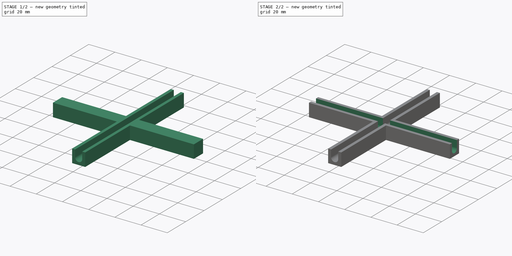
[diagram: build sequence overview — one tinted view per stage of 2, left to right]
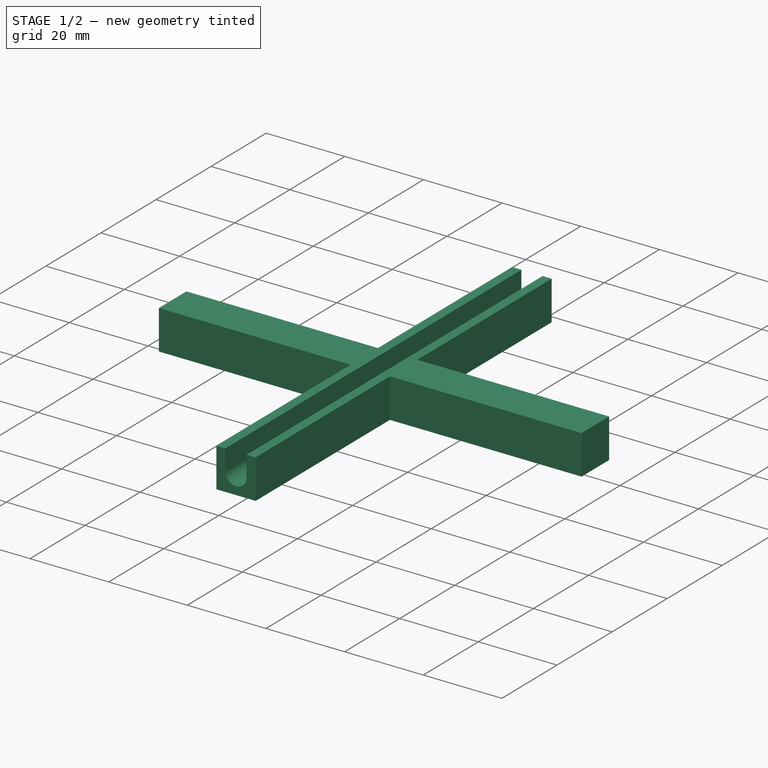
[diagram: stage 1 of 2 — iso view after this stage's code; geometry added in this stage tinted green]
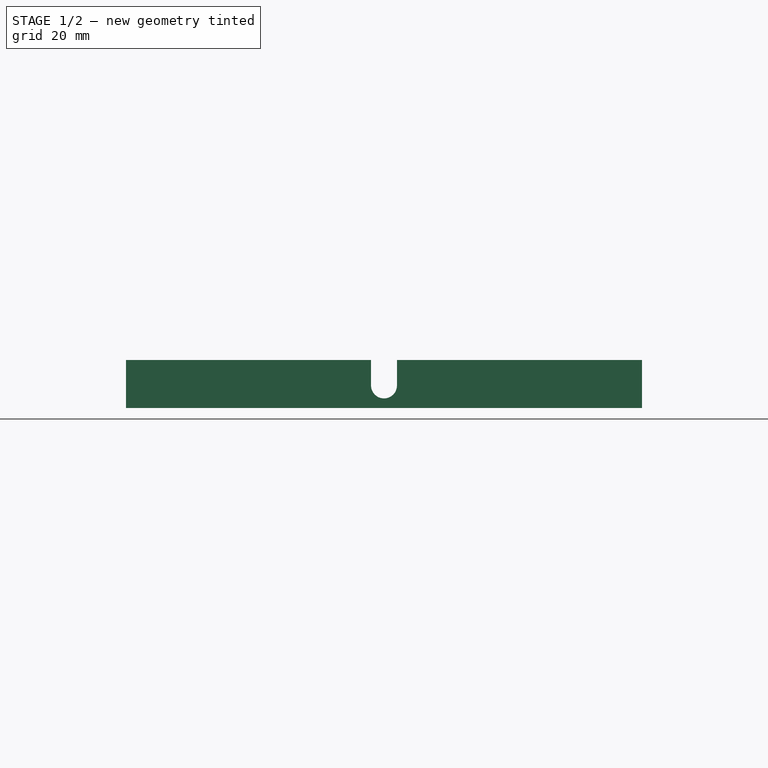
[diagram: stage 1 of 2 — front view after this stage's code; geometry added in this stage tinted green]
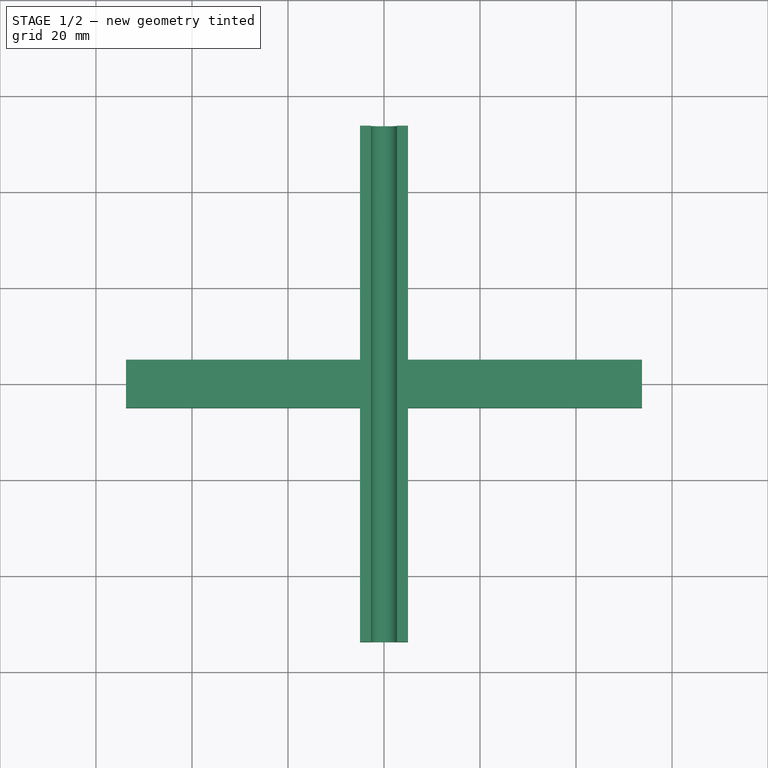
[diagram: stage 1 of 2 — top view after this stage's code; geometry added in this stage tinted green]
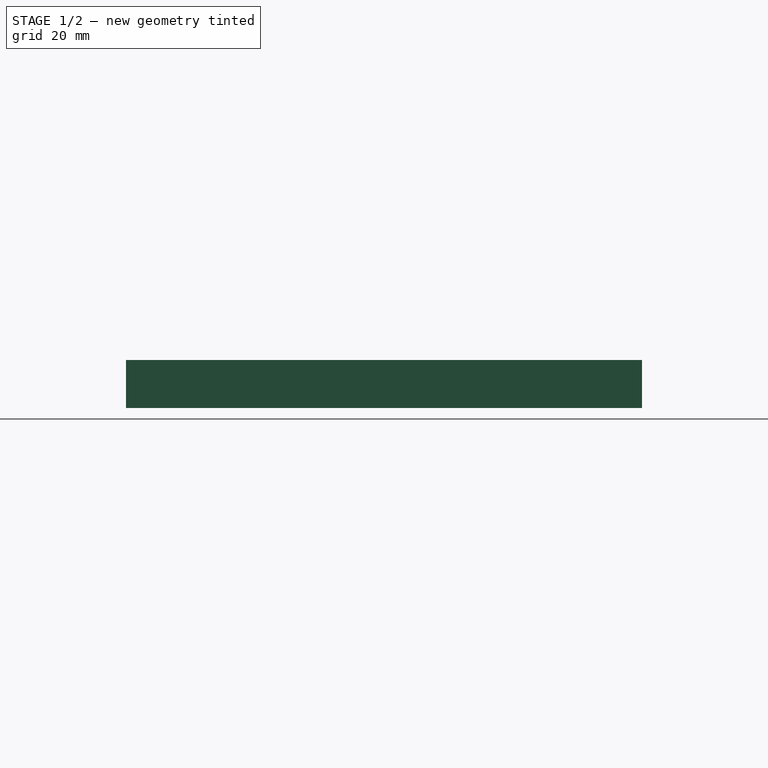
[diagram: stage 1 of 2 — right view after this stage's code; geometry added in this stage tinted green]
FCSTD DOCUMENT  (FreeCAD 0.15R4671 (Git))
Label: Positioning Calibrator
License: All rights reserved
LicenseURL: http://en.wikipedia.org/wiki/All_rights_reserved
objects: Sketcher::SketchObject×4, PartDesign::Pocket×3, PartDesign::Pad×1
note: 12 computed .brp shape members not serialized (recipe doc carries the construction recipe); baked Part::Feature solids carry a one-line shape summary decoded from their .brp

FEATURE [Sketcher::SketchObject] Sketch
  sketch-geometry (16):
    g0: LineSegment StartX=-5 StartY=53.75 StartZ=0 EndX=-5 EndY=5 EndZ=0
    g1: LineSegment StartX=-5 StartY=5 StartZ=0 EndX=-53.75 EndY=5 EndZ=0
    g2: LineSegment StartX=-53.75 StartY=5 StartZ=0 EndX=-53.75 EndY=-5 EndZ=0
    g3: LineSegment StartX=-53.75 StartY=-5 StartZ=0 EndX=-5 EndY=-5 EndZ=0
    g4: LineSegment StartX=-5 StartY=-5 StartZ=0 EndX=-5 EndY=-53.75 EndZ=0
    g5: LineSegment StartX=-5 StartY=-53.75 StartZ=0 EndX=5 EndY=-53.75 EndZ=0
    g6: LineSegment StartX=5 StartY=-53.75 StartZ=0 EndX=5 EndY=-5 EndZ=0
    g7: LineSegment StartX=5 StartY=-5 StartZ=0 EndX=53.75 EndY=-5 EndZ=0
    g8: LineSegment StartX=53.75 StartY=-5 StartZ=0 EndX=53.75 EndY=5 EndZ=0
    g9: LineSegment StartX=53.75 StartY=5 StartZ=0 EndX=5 EndY=5 EndZ=0
    g10: LineSegment StartX=5 StartY=5 StartZ=0 EndX=5 EndY=53.75 EndZ=0
    g11: LineSegment StartX=5 StartY=53.75 StartZ=0 EndX=-5 EndY=53.75 EndZ=0
    g12: LineSegment [constr] StartX=-28.75 StartY=28.75 StartZ=0 EndX=28.75 EndY=28.75 EndZ=0
    g13: LineSegment [constr] StartX=28.75 StartY=28.75 StartZ=0 EndX=28.75 EndY=-28.75 EndZ=0
    g14: LineSegment [constr] StartX=28.75 StartY=-28.75 StartZ=0 EndX=-28.75 EndY=-28.75 EndZ=0
    g15: LineSegment [constr] StartX=-28.75 StartY=-28.75 StartZ=0 EndX=-28.75 EndY=28.75 EndZ=0
  constraints (48):
    c: Vertical(g0)
    c: Coincident(g0,g1)
    c: Horizontal(g1)
    c: Coincident(g1,g2)
    c: Coincident(g2,g3)
    c: Horizontal(g3)
    c: Coincident(g3,g4)
    c: Vertical(g4)
    c: Coincident(g4,g5)
    c: Horizontal(g5)
    c: Coincident(g5,g6)
    c: Vertical(g6)
    c: Coincident(g6,g7)
    c: Horizontal(g7)
    c: Coincident(g7,g8)
    c: Vertical(g8)
    c: Coincident(g8,g9)
    c: Horizontal(g9)
    c: Coincident(g9,g10)
    c: Vertical(g10)
    c: Coincident(g10,g11)
    c: Coincident(g11,g0)
    c: Equal(g3,g4)
    c: Equal(g4,g6)
    c: Equal(g6,g7)
    c: Equal(g7,g9)
    c: Equal(g9,g10)
    c: Equal(g10,g0)
    c: Equal(g0,g1)
    c: Equal(g2,g11)
    c: Equal(g11,g8)
    c: Equal(g8,g5)
    c: Symmetric(g2,g1,g-1)
    c: DistanceX(g11) = -10
    c: Symmetric(g0,g10,g-2)
    c: Coincident(g12,g13)
    c: Coincident(g13,g14)
    c: Coincident(g14,g15)
    c: Coincident(g15,g12)
    c: Horizontal(g12)
    c: Horizontal(g14)
    c: Vertical(g13)
    c: Vertical(g15)
    c: Equal(g15,g12)
    c: Symmetric(g12,g12,g-2)
    c: Symmetric(g12,g14,g-1)
    c: DistanceX(g12) = 57.5
    c: DistanceX(g1,g12) = 25
FEATURE [PartDesign::Pad] Pad
  Length = 10
  Length2 = 100
  Sketch = -> Sketch
  Type = 0
FEATURE [Sketcher::SketchObject] Sketch001
  ExternalGeometry = -> [Pad]
  Placement = pos=(0,53.75,0) rot=(0,0.707107,0.707107;3.14159rad)
  Support = -> Pad [Face12]
  sketch-geometry (4):
    g0: ArcOfCircle CenterX=0 CenterY=4.7 CenterZ=0 NormalX=0 NormalY=0 NormalZ=1 Radius=2.7 StartAngle=3.1416 EndAngle=6.28319
    g1: LineSegment StartX=-2.7 StartY=4.69999 StartZ=0 EndX=-2.7 EndY=10 EndZ=0
    g2: LineSegment StartX=2.7 StartY=10 StartZ=0 EndX=2.7 EndY=4.7 EndZ=0
    g3: LineSegment StartX=2.7 StartY=10 StartZ=0 EndX=-2.7 EndY=10 EndZ=0
  constraints (13):
    c: PointOnObject(g0,g-2)
    c: Coincident(g1,g0)
    c: PointOnObject(g1,g-3)
    c: Vertical(g1)
    c: PointOnObject(g2,g-3)
    c: Coincident(g2,g0)
    c: Vertical(g2)
    c: Coincident(g3,g2)
    c: Coincident(g3,g1)
    c: Radius(g0) = 2.7
    c: DistanceY(g0,g-4) = -4.7
    c: Tangent(g0,g2)
    c: Tangent(g0,g1)
FEATURE [PartDesign::Pocket] Pocket
  Length = 5
  Sketch = -> Sketch001
  Type = 1
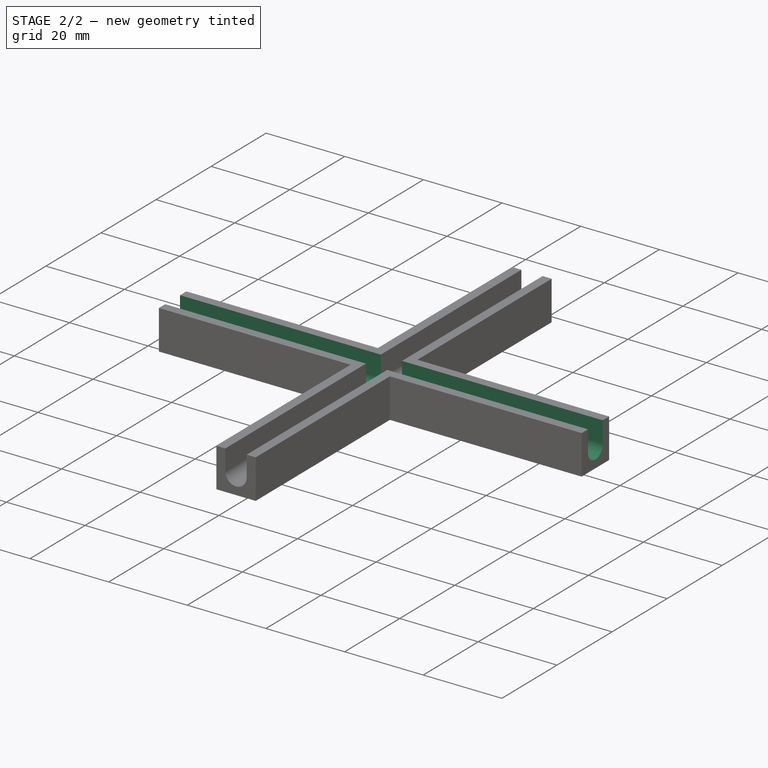
[diagram: stage 2 of 2 — iso view after this stage's code; geometry added in this stage tinted green]
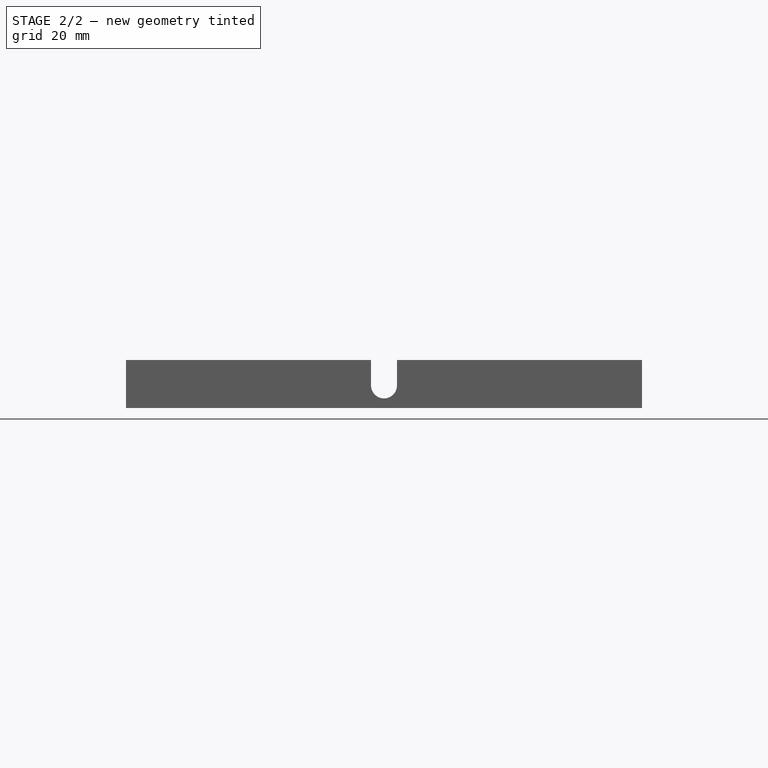
[diagram: stage 2 of 2 — front view after this stage's code; geometry added in this stage tinted green]
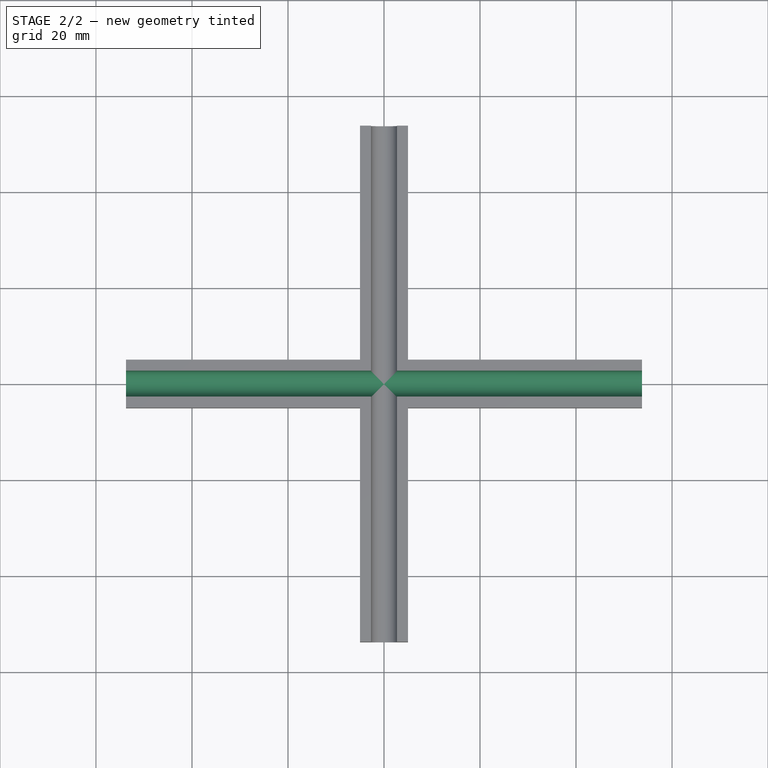
[diagram: stage 2 of 2 — top view after this stage's code; geometry added in this stage tinted green]
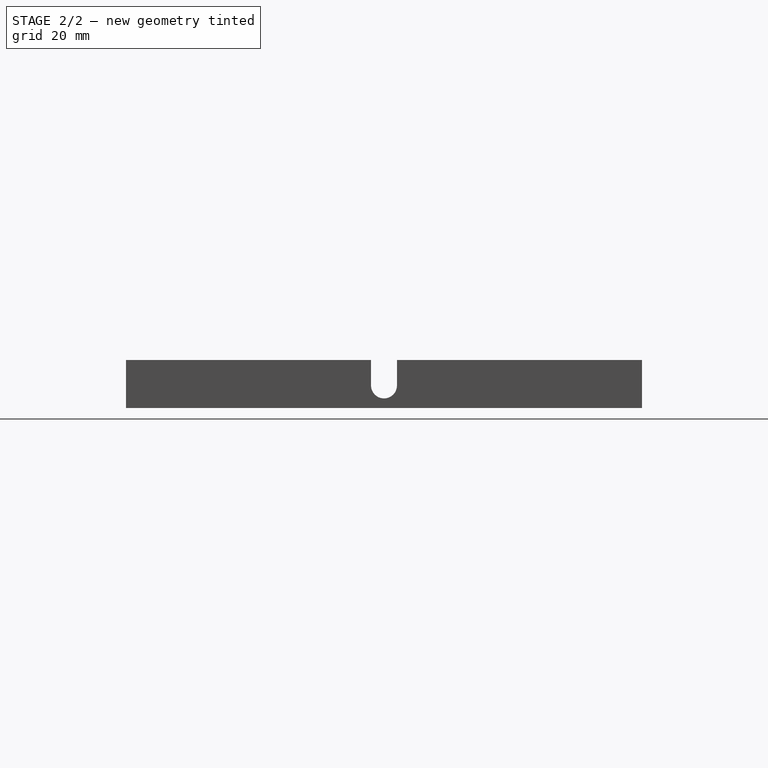
[diagram: stage 2 of 2 — right view after this stage's code; geometry added in this stage tinted green]
FEATURE [Sketcher::SketchObject] Sketch002
  ExternalGeometry = -> [Pocket]
  Placement = pos=(53.75,0,0) rot=(0.57735,0.57735,0.57735;2.0944rad)
  Support = -> Pocket [Face17]
  sketch-geometry (4):
    g0: ArcOfCircle CenterX=0 CenterY=4.7 CenterZ=0 NormalX=0 NormalY=0 NormalZ=1 Radius=2.7 StartAngle=3.14159 EndAngle=6.28319
    g1: LineSegment StartX=-2.7 StartY=4.7 StartZ=0 EndX=-2.7 EndY=10 EndZ=0
    g2: LineSegment StartX=2.7 StartY=10 StartZ=0 EndX=2.7 EndY=4.7 EndZ=0
    g3: LineSegment StartX=2.7 StartY=10 StartZ=0 EndX=-2.7 EndY=10 EndZ=0
  constraints (13):
    c: PointOnObject(g0,g-2)
    c: Coincident(g1,g0)
    c: Vertical(g1)
    c: Coincident(g2,g0)
    c: Vertical(g2)
    c: Coincident(g3,g2)
    c: Coincident(g3,g1)
    c: Tangent(g0,g2)
    c: Tangent(g0,g1)
    c: Radius(g0) = 2.7
    c: DistanceY(g-4,g0) = 4.7
    c: PointOnObject(g2,g-3)
    c: PointOnObject(g1,g-3)
FEATURE [PartDesign::Pocket] Pocket001
  Length = 53.75
  Sketch = -> Sketch002
  Type = 0
FEATURE [Sketcher::SketchObject] Sketch003
  ExternalGeometry = -> [Pocket001]
  Placement = pos=(-53.75,-3.27e-10,0) rot=(0.57735,-0.57735,-0.57735;2.0944rad)
  Support = -> Pocket001 [Face11]
  sketch-geometry (4):
    g0: ArcOfCircle CenterX=-3.27e-10 CenterY=4.7 CenterZ=0 NormalX=0 NormalY=0 NormalZ=1 Radius=2.7 StartAngle=3.14159 EndAngle=6.28319
    g1: LineSegment StartX=-2.7 StartY=4.7 StartZ=0 EndX=-2.7 EndY=10 EndZ=0
    g2: LineSegment StartX=-2.7 StartY=10 StartZ=0 EndX=2.7 EndY=10 EndZ=0
    g3: LineSegment StartX=2.7 StartY=10 StartZ=0 EndX=2.7 EndY=4.7 EndZ=0
  constraints (6):
    c: Tangent(g0,g1) = 1.5708
    c: Coincident(g1,g2)
    c: Horizontal(g2)
    c: Coincident(g2,g3)
    c: Coincident(g3,g0)
    c: Vertical(g3)
FEATURE [PartDesign::Pocket] Pocket002
  Length = 53.75
  Sketch = -> Sketch003
  Type = 0
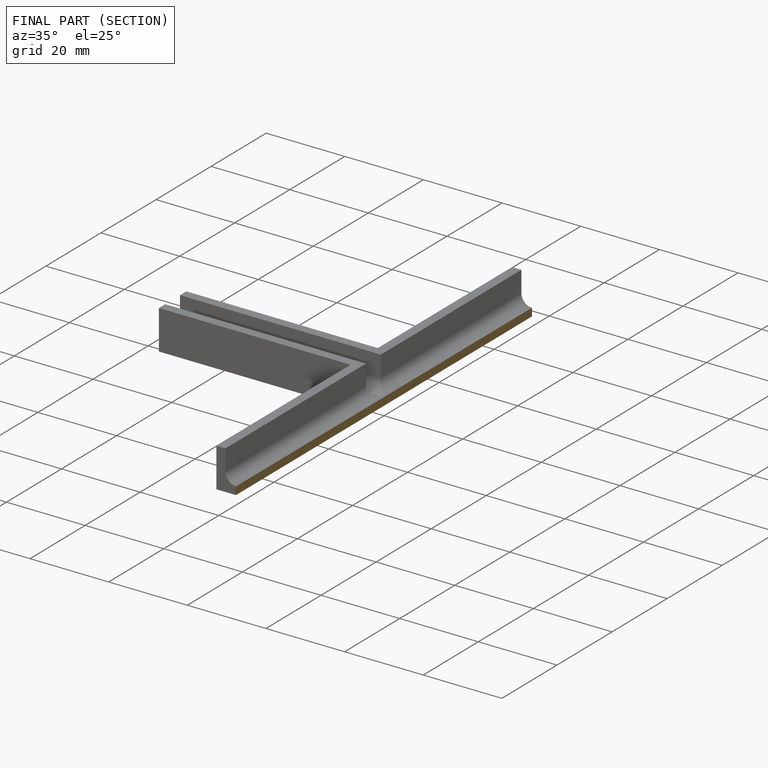
[diagram: finished part — half-section view (interior)]
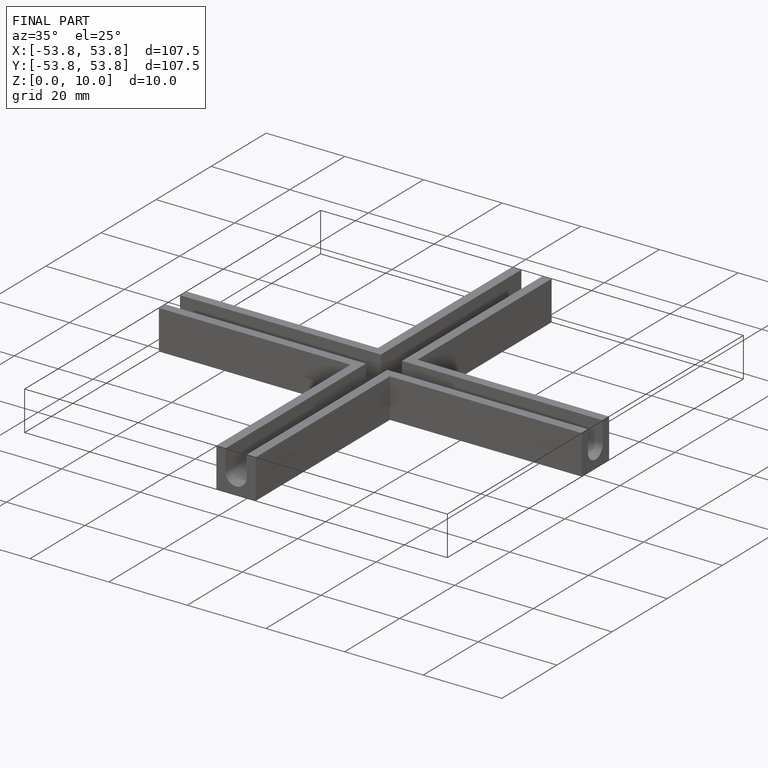
[diagram: finished part — iso view with bounding-box wireframe]
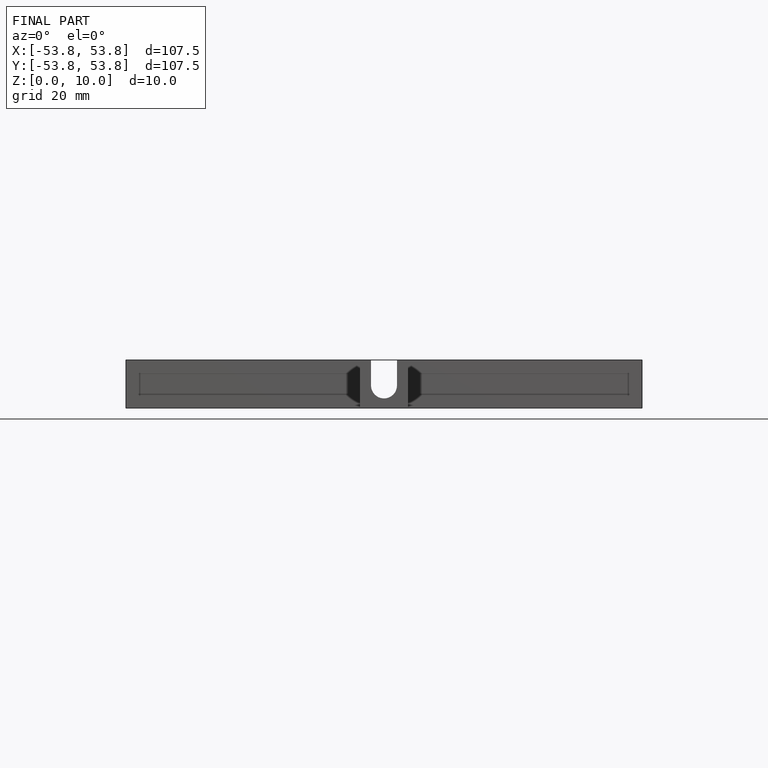
[diagram: finished part — front view with bounding-box wireframe]
